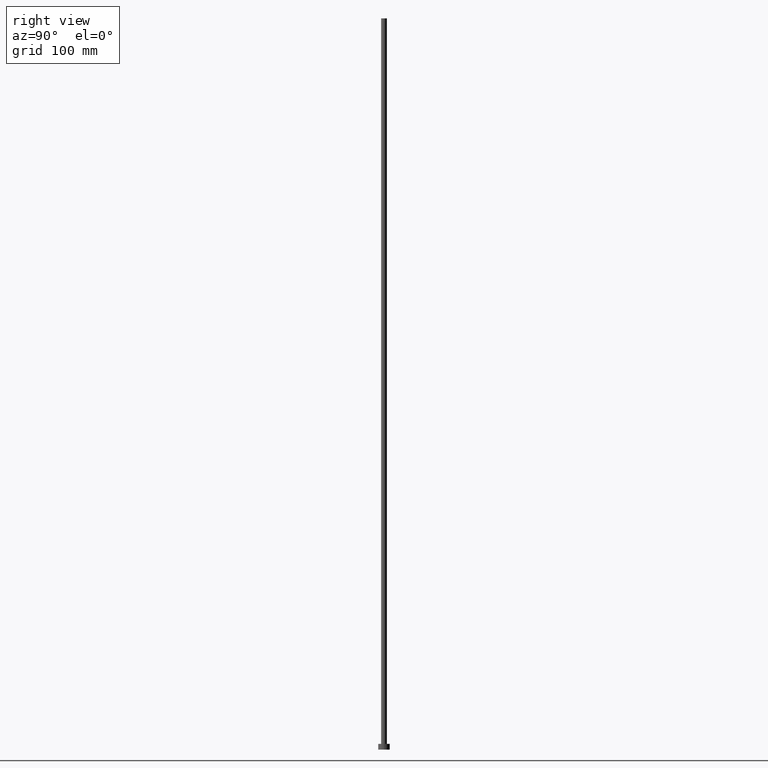
[diagram: clean part render]
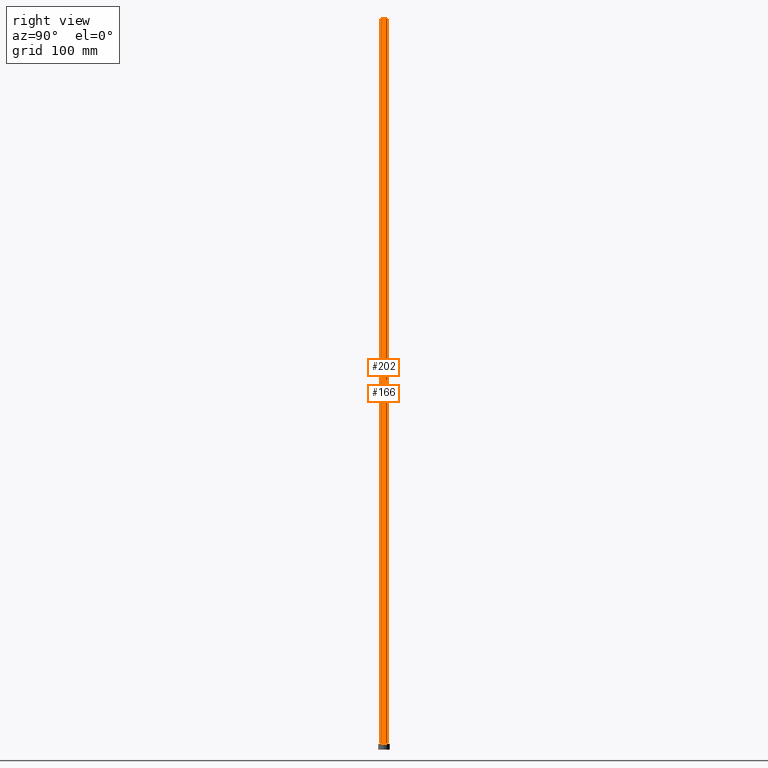
[diagram: same view with one multi-face feature highlighted, each face labeled with its STEP entity id]
A machine part, right view. The highlighted faces form ONE feature: a constant-radius fillet chain: 2 tangent blend faces with common blend radius 2.5 mm. The faces share edges in the B-rep.
Their STEP definitions:
[1] entity #166 (Cylinder):
#8 = VECTOR ( 'NONE', #57, 1000.000000000000000 ) ;
#13 = CARTESIAN_POINT ( 'NONE',  ( 2.500000000000000000, 3.061616997868383141E-16, 630.0000000000000000 ) ) ;
#25 = CARTESIAN_POINT ( 'NONE',  ( -2.500000000000000000, 0.000000000000000000, 630.0000000000000000 ) ) ;
#26 = EDGE_CURVE ( 'NONE', #85, #88, #42, .T. ) ;
#34 = EDGE_LOOP ( 'NONE', ( #72, #127, #161, #214 ) ) ;
#42 = CIRCLE ( 'NONE', #180, 2.500000000000000000 ) ;
#43 = CYLINDRICAL_SURFACE ( 'NONE', #254, 2.500000000000000000 ) ;
#51 = VERTEX_POINT ( 'NONE', #13 ) ;
#52 = LINE ( 'NONE', #79, #104 ) ;
#54 = DIRECTION ( 'NONE',  ( -1.000000000000000000, 0.000000000000000000, 0.000000000000000000 ) ) ;
#57 = DIRECTION ( 'NONE',  ( -0.000000000000000000, -0.000000000000000000, -1.000000000000000000 ) ) ;
#72 = ORIENTED_EDGE ( 'NONE', *, *, #197, .F. ) ;
#73 = CARTESIAN_POINT ( 'NONE',  ( -2.500000000000000000, 0.000000000000000000, 5.000000000000000000 ) ) ;
#76 = CARTESIAN_POINT ( 'NONE',  ( -2.500000000000000000, 0.000000000000000000, 630.0000000000000000 ) ) ;
#79 = CARTESIAN_POINT ( 'NONE',  ( 2.500000000000000000, 3.061616997868383141E-16, 630.0000000000000000 ) ) ;
#85 = VERTEX_POINT ( 'NONE', #233 ) ;
#87 = CIRCLE ( 'NONE', #221, 2.500000000000000000 ) ;
#88 = VERTEX_POINT ( 'NONE', #73 ) ;
#91 = EDGE_CURVE ( 'NONE', #203, #88, #156, .T. ) ;
#104 = VECTOR ( 'NONE', #169, 1000.000000000000000 ) ;
#125 = EDGE_CURVE ( 'NONE', #51, #85, #52, .T. ) ;
#127 = ORIENTED_EDGE ( 'NONE', *, *, #125, .T. ) ;
#130 = DIRECTION ( 'NONE',  ( 1.000000000000000000, 0.000000000000000000, 0.000000000000000000 ) ) ;
#137 = CARTESIAN_POINT ( 'NONE',  ( 0.000000000000000000, 0.000000000000000000, 630.0000000000000000 ) ) ;
#156 = LINE ( 'NONE', #76, #8 ) ;
#159 = DIRECTION ( 'NONE',  ( 0.000000000000000000, 0.000000000000000000, 1.000000000000000000 ) ) ;
#161 = ORIENTED_EDGE ( 'NONE', *, *, #26, .T. ) ;
#166 = ADVANCED_FACE ( 'NONE', ( #195 ), #43, .T. ) ;
#169 = DIRECTION ( 'NONE',  ( -0.000000000000000000, -0.000000000000000000, -1.000000000000000000 ) ) ;
#170 = DIRECTION ( 'NONE',  ( 1.000000000000000000, 0.000000000000000000, 0.000000000000000000 ) ) ;
#180 = AXIS2_PLACEMENT_3D ( 'NONE', #229, #159, #130 ) ;
#188 = DIRECTION ( 'NONE',  ( 0.000000000000000000, 0.000000000000000000, 1.000000000000000000 ) ) ;
#191 = CARTESIAN_POINT ( 'NONE',  ( 0.000000000000000000, 0.000000000000000000, 630.0000000000000000 ) ) ;
#195 = FACE_OUTER_BOUND ( 'NONE', #34, .T. ) ;
#197 = EDGE_CURVE ( 'NONE', #51, #203, #87, .T. ) ;
#203 = VERTEX_POINT ( 'NONE', #25 ) ;
#214 = ORIENTED_EDGE ( 'NONE', *, *, #91, .F. ) ;
#221 = AXIS2_PLACEMENT_3D ( 'NONE', #191, #188, #170 ) ;
#229 = CARTESIAN_POINT ( 'NONE',  ( 0.000000000000000000, 0.000000000000000000, 5.000000000000000000 ) ) ;
#232 = DIRECTION ( 'NONE',  ( -0.000000000000000000, -0.000000000000000000, -1.000000000000000000 ) ) ;
#233 = CARTESIAN_POINT ( 'NONE',  ( 2.500000000000000000, 3.061616997868383141E-16, 5.000000000000000000 ) ) ;
#254 = AXIS2_PLACEMENT_3D ( 'NONE', #137, #232, #54 ) ;
[2] entity #202 (Cylinder):
#5 = AXIS2_PLACEMENT_3D ( 'NONE', #92, #155, #217 ) ;
#8 = VECTOR ( 'NONE', #57, 1000.000000000000000 ) ;
#13 = CARTESIAN_POINT ( 'NONE',  ( 2.500000000000000000, 3.061616997868383141E-16, 630.0000000000000000 ) ) ;
#14 = ORIENTED_EDGE ( 'NONE', *, *, #91, .T. ) ;
#25 = CARTESIAN_POINT ( 'NONE',  ( -2.500000000000000000, 0.000000000000000000, 630.0000000000000000 ) ) ;
#38 = ORIENTED_EDGE ( 'NONE', *, *, #67, .F. ) ;
#51 = VERTEX_POINT ( 'NONE', #13 ) ;
#52 = LINE ( 'NONE', #79, #104 ) ;
#57 = DIRECTION ( 'NONE',  ( -0.000000000000000000, -0.000000000000000000, -1.000000000000000000 ) ) ;
#67 = EDGE_CURVE ( 'NONE', #203, #51, #216, .T. ) ;
#73 = CARTESIAN_POINT ( 'NONE',  ( -2.500000000000000000, 0.000000000000000000, 5.000000000000000000 ) ) ;
#75 = CIRCLE ( 'NONE', #5, 2.500000000000000000 ) ;
#76 = CARTESIAN_POINT ( 'NONE',  ( -2.500000000000000000, 0.000000000000000000, 630.0000000000000000 ) ) ;
#79 = CARTESIAN_POINT ( 'NONE',  ( 2.500000000000000000, 3.061616997868383141E-16, 630.0000000000000000 ) ) ;
#85 = VERTEX_POINT ( 'NONE', #233 ) ;
#88 = VERTEX_POINT ( 'NONE', #73 ) ;
#91 = EDGE_CURVE ( 'NONE', #203, #88, #156, .T. ) ;
#92 = CARTESIAN_POINT ( 'NONE',  ( 0.000000000000000000, 0.000000000000000000, 5.000000000000000000 ) ) ;
#104 = VECTOR ( 'NONE', #169, 1000.000000000000000 ) ;
#118 = CYLINDRICAL_SURFACE ( 'NONE', #147, 2.500000000000000000 ) ;
#121 = AXIS2_PLACEMENT_3D ( 'NONE', #160, #243, #251 ) ;
#122 = EDGE_CURVE ( 'NONE', #88, #85, #75, .T. ) ;
#125 = EDGE_CURVE ( 'NONE', #51, #85, #52, .T. ) ;
#134 = ORIENTED_EDGE ( 'NONE', *, *, #125, .F. ) ;
#136 = DIRECTION ( 'NONE',  ( -0.000000000000000000, -0.000000000000000000, -1.000000000000000000 ) ) ;
#147 = AXIS2_PLACEMENT_3D ( 'NONE', #167, #136, #193 ) ;
#155 = DIRECTION ( 'NONE',  ( 0.000000000000000000, 0.000000000000000000, 1.000000000000000000 ) ) ;
#156 = LINE ( 'NONE', #76, #8 ) ;
#160 = CARTESIAN_POINT ( 'NONE',  ( 0.000000000000000000, 0.000000000000000000, 630.0000000000000000 ) ) ;
#167 = CARTESIAN_POINT ( 'NONE',  ( 0.000000000000000000, 0.000000000000000000, 630.0000000000000000 ) ) ;
#169 = DIRECTION ( 'NONE',  ( -0.000000000000000000, -0.000000000000000000, -1.000000000000000000 ) ) ;
#193 = DIRECTION ( 'NONE',  ( -1.000000000000000000, 0.000000000000000000, 0.000000000000000000 ) ) ;
#202 = ADVANCED_FACE ( 'NONE', ( #212 ), #118, .T. ) ;
#203 = VERTEX_POINT ( 'NONE', #25 ) ;
#212 = FACE_OUTER_BOUND ( 'NONE', #246, .T. ) ;
#216 = CIRCLE ( 'NONE', #121, 2.500000000000000000 ) ;
#217 = DIRECTION ( 'NONE',  ( 1.000000000000000000, 0.000000000000000000, 0.000000000000000000 ) ) ;
#233 = CARTESIAN_POINT ( 'NONE',  ( 2.500000000000000000, 3.061616997868383141E-16, 5.000000000000000000 ) ) ;
#243 = DIRECTION ( 'NONE',  ( 0.000000000000000000, 0.000000000000000000, 1.000000000000000000 ) ) ;
#245 = ORIENTED_EDGE ( 'NONE', *, *, #122, .T. ) ;
#246 = EDGE_LOOP ( 'NONE', ( #134, #38, #14, #245 ) ) ;
#251 = DIRECTION ( 'NONE',  ( 1.000000000000000000, 0.000000000000000000, 0.000000000000000000 ) ) ;